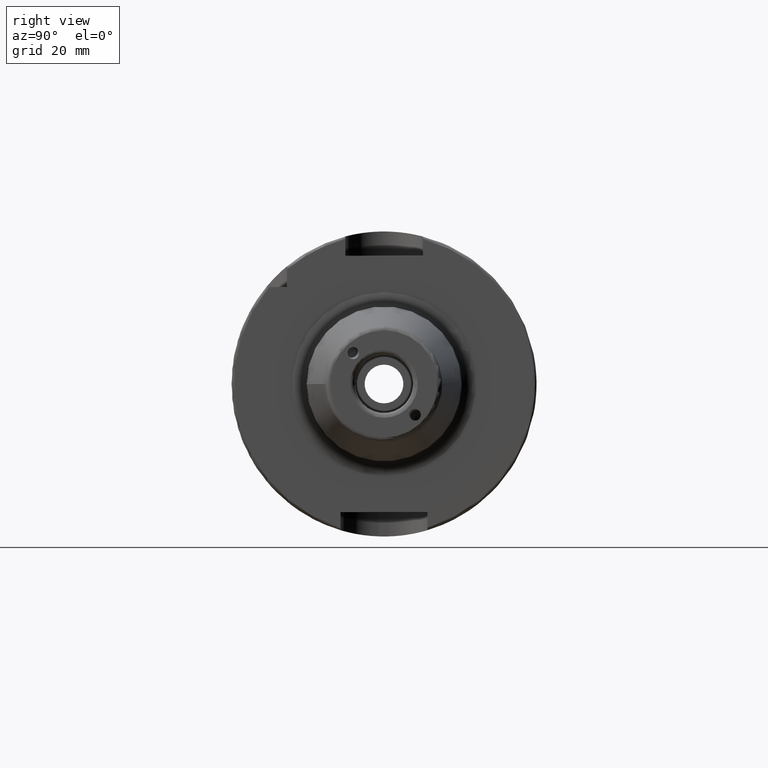
[diagram: clean part render]
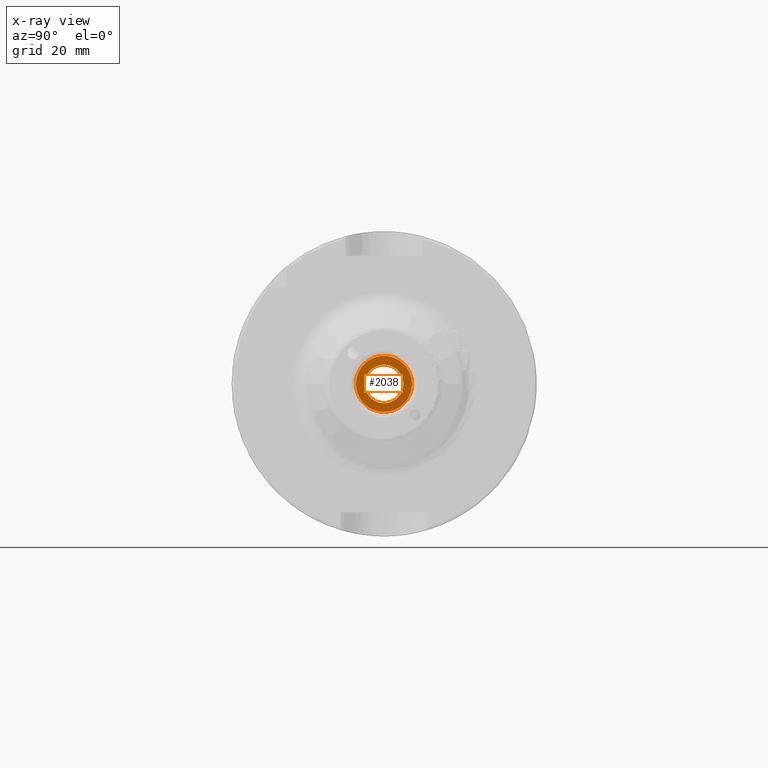
[diagram: x-ray — body ghosted, one internal face saturated and labeled with its STEP entity id]
A machine part, right view, then the same camera in x-ray: the body is ghosted and one INTERNAL B-rep face — a face not visible from any outside direction — is saturated and labeled: STEP entity #2038.
In plain terms, the highlighted planar face has unit normal (-1, 0, 0).
Its self-contained STEP definition (entity closure, byte-faithful):
#94=FACE_BOUND('',#364,.T.);
#107=PLANE('',#2211);
#235=FACE_OUTER_BOUND('',#363,.T.);
#363=EDGE_LOOP('',(#1436));
#364=EDGE_LOOP('',(#1437));
#722=CIRCLE('',#2206,4.);
#724=CIRCLE('',#2210,5.8);
#861=VERTEX_POINT('',#3149);
#863=VERTEX_POINT('',#3156);
#1081=EDGE_CURVE('',#861,#861,#722,.T.);
#1084=EDGE_CURVE('',#863,#863,#724,.T.);
#1436=ORIENTED_EDGE('',*,*,#1084,.F.);
#1437=ORIENTED_EDGE('',*,*,#1081,.T.);
#2038=ADVANCED_FACE('',(#235,#94),#107,.F.);
#2206=AXIS2_PLACEMENT_3D('',#3151,#2524,#2525);
#2210=AXIS2_PLACEMENT_3D('',#3158,#2533,#2534);
#2211=AXIS2_PLACEMENT_3D('',#3159,#2535,#2536);
#2524=DIRECTION('center_axis',(-1.,0.,0.));
#2525=DIRECTION('ref_axis',(0.,0.,1.));
#2533=DIRECTION('center_axis',(-1.,0.,0.));
#2534=DIRECTION('ref_axis',(0.,0.,1.));
#2535=DIRECTION('center_axis',(-1.,0.,0.));
#2536=DIRECTION('ref_axis',(0.,0.,1.));
#3149=CARTESIAN_POINT('',(27.,-4.89858719658941E-16,-4.));
#3151=CARTESIAN_POINT('Origin',(27.,0.,0.));
#3156=CARTESIAN_POINT('',(27.,-5.79999999999999,7.10295143505465E-16));
#3158=CARTESIAN_POINT('Origin',(27.,3.33066907387547E-15,0.));
#3159=CARTESIAN_POINT('Origin',(27.,1.11022302462516E-15,0.));